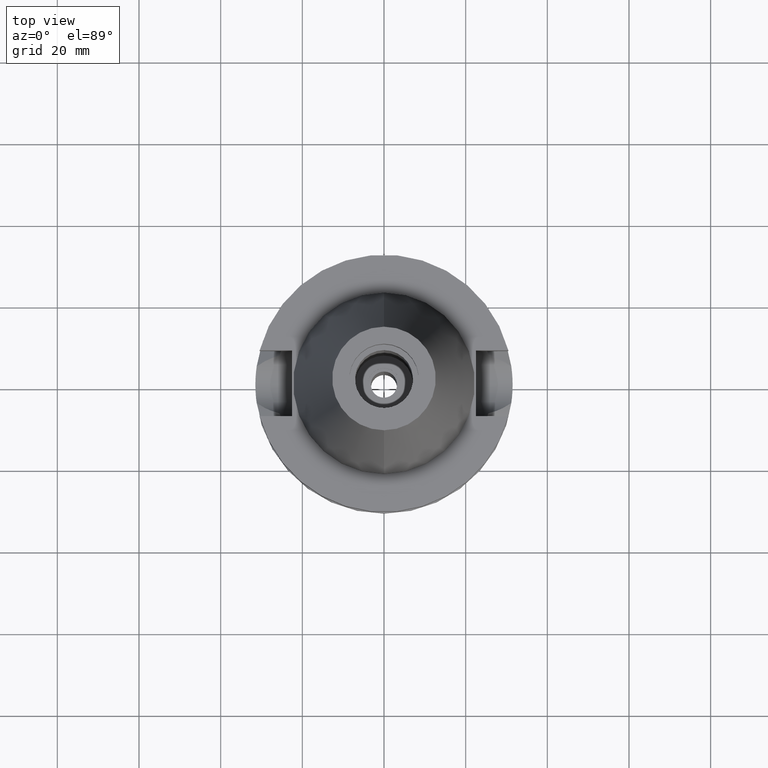
[diagram: clean part render]
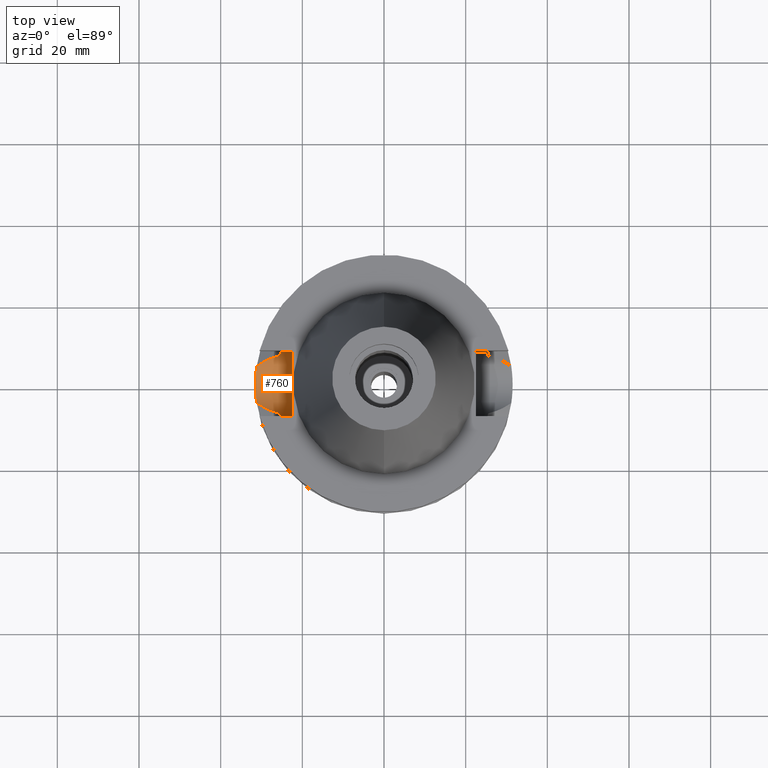
[diagram: same view with one face highlighted and labeled with its STEP entity id]
A machine part, top view. The second image highlights one B-rep face of the part: STEP entity #760.
In plain terms, the highlighted cylindrical surface (edge-blend (fillet) strip) has radius 8.05 mm, axis along (-1, 0, 0).
Its self-contained STEP definition (entity closure, byte-faithful):
#63 = CARTESIAN_POINT ( 'NONE',  ( -25.24772266958000344, -8.050000000000000711, -14.94999999999999929 ) ) ;
#104 = ORIENTED_EDGE ( 'NONE', *, *, #2413, .F. ) ;
#153 = CARTESIAN_POINT ( 'NONE',  ( -30.85552377717051442, -4.730946574944272953, -21.46981517898995051 ) ) ;
#176 = CARTESIAN_POINT ( 'NONE',  ( -29.92495116892285267, 5.317314239572929147, -20.99555830456288419 ) ) ;
#200 = CARTESIAN_POINT ( 'NONE',  ( -31.41196838671982761, 2.353633167399140191, -22.64828270924342135 ) ) ;
#207 = CARTESIAN_POINT ( 'NONE',  ( -26.79372251046983777, 6.719732988620376268, -19.39535861113916226 ) ) ;
#214 = CARTESIAN_POINT ( 'NONE',  ( -31.43643257257468093, -2.003966855041720230, -22.74771882455625516 ) ) ;
#244 = CARTESIAN_POINT ( 'NONE',  ( -25.31206084004277201, 7.845614529398853954, -16.75329855851934369 ) ) ;
#257 = CARTESIAN_POINT ( 'NONE',  ( -28.96126160750731060, -5.827391182359932920, -20.50387863129706290 ) ) ;
#272 = CARTESIAN_POINT ( 'NONE',  ( -29.23802939806597934, -5.690174520726454688, -20.64519331293571369 ) ) ;
#313 = CARTESIAN_POINT ( 'NONE',  ( -25.32419709970372068, -7.806318959917333267, -16.91578803894913108 ) ) ;
#371 = B_SPLINE_CURVE_WITH_KNOTS ( 'NONE', 3,
 ( #764, #2160, #2693, #440, #2715, #1620, #2747, #461, #3512, #742, #200, #2142, #3314, #1878, #2419, #3563, #1547, #1898, #214, #3025, #1338, #2969, #966, #2103, #2987, #1563 ),
 .UNSPECIFIED., .F., .F.,
 ( 4, 2, 2, 1, 1, 2, 2, 2, 2, 2, 1, 1, 2, 2, 4 ),
 ( 0.0000000000000000000, 0.1250000000000000555, 0.1875000000000003608, 0.2187500000000005829, 0.2343750000000006661, 0.2421875000000006939, 0.2500000000000007216, 0.4999999999999980016, 0.6249999999999966693, 0.6874999999999961142, 0.7187499999999957812, 0.7343749999999956701, 0.7421874999999955591, 0.7499999999999954481, 1.000000000000000000 ),
 .UNSPECIFIED. ) ;
#429 = EDGE_CURVE ( 'NONE', #2083, #3082, #1722, .T. ) ;
#440 = CARTESIAN_POINT ( 'NONE',  ( -31.33704727451088701, 3.201741485572032975, -22.33858232039710146 ) ) ;
#447 = CARTESIAN_POINT ( 'NONE',  ( -28.61764694087496608, 5.991757067151514349, -20.32839485513061106 ) ) ;
#461 = CARTESIAN_POINT ( 'NONE',  ( -31.40238352135567368, 2.478482150255520988, -22.60918600287887870 ) ) ;
#473 = CARTESIAN_POINT ( 'NONE',  ( -30.50769866365479288, 4.966315119253688515, -21.29262337969223751 ) ) ;
#599 = VERTEX_POINT ( 'NONE', #3201 ) ;
#684 = CARTESIAN_POINT ( 'NONE',  ( -31.17899877608999759, 4.485536235554000051, -21.63449434733000132 ) ) ;
#742 = CARTESIAN_POINT ( 'NONE',  ( -31.41056491124585293, 2.372237050524538926, -22.64256036890107993 ) ) ;
#755 = B_SPLINE_CURVE_WITH_KNOTS ( 'NONE', 3,
 ( #2680, #153, #1568, #3380, #1150, #2805, #272, #2229, #257, #1950, #2526, #3416, #2211 ),
 .UNSPECIFIED., .F., .F.,
 ( 4, 2, 2, 1, 2, 2, 4 ),
 ( 0.0000000000000000000, 0.2500000000000057732, 0.3750000000000087708, 0.4375000000000099365, 0.4687500000000101585, 0.5000000000000104361, 1.000000000000000000 ),
 .UNSPECIFIED. ) ;
#760 = ADVANCED_FACE ( 'NONE', ( #1275 ), #3539, .F. ) ;
#764 = CARTESIAN_POINT ( 'NONE',  ( -31.17899877608999759, 4.485536235554000051, -21.63449434733000132 ) ) ;
#823 = CARTESIAN_POINT ( 'NONE',  ( -25.25396625246038695, 8.030896711159561718, -15.59378553532217460 ) ) ;
#837 = ORIENTED_EDGE ( 'NONE', *, *, #2483, .T. ) ;
#839 = CARTESIAN_POINT ( 'NONE',  ( -25.24772266958001055, 8.050000000000016698, -15.27000344023674927 ) ) ;
#858 = CARTESIAN_POINT ( 'NONE',  ( -25.39164951575627072, -7.584807667268660403, -17.65197957178662591 ) ) ;
#885 = ORIENTED_EDGE ( 'NONE', *, *, #2778, .T. ) ;
#933 = LINE ( 'NONE', #1788, #3421 ) ;
#957 = DIRECTION ( 'NONE',  ( -1.000000000000000000, 0.0000000000000000000, 0.0000000000000000000 ) ) ;
#966 = CARTESIAN_POINT ( 'NONE',  ( -31.41425586186309715, -2.322858716165696613, -22.65761362937588785 ) ) ;
#1000 = DIRECTION ( 'NONE',  ( 0.0000000000000000000, 0.0000000000000000000, -1.000000000000000000 ) ) ;
#1007 = CARTESIAN_POINT ( 'NONE',  ( -31.17899877608999759, -4.485536235554000051, -21.63449434733000132 ) ) ;
#1064 = CARTESIAN_POINT ( 'NONE',  ( -30.86098377330747766, 4.726804247068216114, -21.47259483004561886 ) ) ;
#1077 = CARTESIAN_POINT ( 'NONE',  ( -25.43789037939438202, 7.435491690444336221, -18.11672414067862036 ) ) ;
#1135 = CARTESIAN_POINT ( 'NONE',  ( -25.33293017119734003, -7.777974374869151220, -17.02562462714743319 ) ) ;
#1150 = CARTESIAN_POINT ( 'NONE',  ( -29.71459382902008883, -5.437100077644570817, -20.88840961852611144 ) ) ;
#1195 = B_SPLINE_CURVE_WITH_KNOTS ( 'NONE', 3,
 ( #1571, #1064, #473, #176, #2994, #2428, #3284, #447, #3103, #2741, #3046, #3319, #3033, #1596, #3303, #207, #3556, #1863 ),
 .UNSPECIFIED., .F., .F.,
 ( 4, 2, 2, 2, 2, 1, 1, 2, 2, 4 ),
 ( 0.0000000000000000000, 0.2500000000000104361, 0.3750000000000153211, 0.5000000000000202061, 0.6250000000000250910, 0.6875000000000272005, 0.7187500000000279776, 0.7343750000000275335, 0.7500000000000270894, 1.000000000000000000 ),
 .UNSPECIFIED. ) ;
#1235 = ORIENTED_EDGE ( 'NONE', *, *, #2365, .T. ) ;
#1275 = FACE_OUTER_BOUND ( 'NONE', #3111, .T. ) ;
#1338 = CARTESIAN_POINT ( 'NONE',  ( -31.41974700004597665, -2.247358039327526313, -22.67997564925554244 ) ) ;
#1363 = CARTESIAN_POINT ( 'NONE',  ( -25.32122245610152333, 7.815962707354717764, -16.87706809355960402 ) ) ;
#1401 = CARTESIAN_POINT ( 'NONE',  ( -25.24772266958001055, -8.049999999999984723, -15.58999736305831973 ) ) ;
#1435 = ORIENTED_EDGE ( 'NONE', *, *, #429, .T. ) ;
#1476 = CARTESIAN_POINT ( 'NONE',  ( -25.53175183775000079, -7.097862220092999941, -18.74774300138999905 ) ) ;
#1507 = DIRECTION ( 'NONE',  ( 1.000000000000000000, 1.551559937893000172E-14, -3.620306521749999889E-14 ) ) ;
#1547 = CARTESIAN_POINT ( 'NONE',  ( -31.46161069947297406, -1.564500927471072611, -22.84904545394530473 ) ) ;
#1563 = CARTESIAN_POINT ( 'NONE',  ( -31.17899877608999759, -4.485536235554000051, -21.63449434733000132 ) ) ;
#1568 = CARTESIAN_POINT ( 'NONE',  ( -30.49957164465255843, -4.971738653406688080, -21.28861833821772720 ) ) ;
#1571 = CARTESIAN_POINT ( 'NONE',  ( -31.17899877608999759, 4.485536235554000051, -21.63449434733000132 ) ) ;
#1596 = CARTESIAN_POINT ( 'NONE',  ( -27.39618361203392283, 6.496535640457026695, -19.70378481150588357 ) ) ;
#1620 = CARTESIAN_POINT ( 'NONE',  ( -31.37890571234700587, 2.759253316053588811, -22.51292583804538339 ) ) ;
#1643 = CARTESIAN_POINT ( 'NONE',  ( -25.36818832152595249, 7.663695285298014248, -17.48840541843546958 ) ) ;
#1680 = CARTESIAN_POINT ( 'NONE',  ( -25.27269391206938565, -7.973288729653494222, -16.24537813287016164 ) ) ;
#1722 = B_SPLINE_CURVE_WITH_KNOTS ( 'NONE', 3,
 ( #1476, #2319, #2045, #858, #2549, #3188, #2909, #1135, #1986, #3132, #313, #1680, #1401, #1968 ),
 .UNSPECIFIED., .F., .F.,
 ( 4, 2, 2, 1, 1, 2, 2, 4 ),
 ( 0.0000000000000000000, 0.2499999999999834022, 0.3749999999999751865, 0.4374999999999711342, 0.4687499999999688582, 0.4843749999999691913, 0.4999999999999694689, 1.000000000000000000 ),
 .UNSPECIFIED. ) ;
#1788 = CARTESIAN_POINT ( 'NONE',  ( -25.24772266958000344, 8.050000000000000711, -14.94999999999999929 ) ) ;
#1843 = CARTESIAN_POINT ( 'NONE',  ( -22.50000000000000000, -8.050000000000000711, -14.94999999999999929 ) ) ;
#1863 = CARTESIAN_POINT ( 'NONE',  ( -25.53175183775000079, 7.097862220092999941, -18.74774300138999905 ) ) ;
#1878 = CARTESIAN_POINT ( 'NONE',  ( -31.49987638199703355, -0.3937373737425396425, -22.99951167286949882 ) ) ;
#1898 = CARTESIAN_POINT ( 'NONE',  ( -31.44527646887209471, -1.857544946900752336, -22.78339309170242899 ) ) ;
#1930 = VECTOR ( 'NONE', #2197, 1000.000000000000000 ) ;
#1950 = CARTESIAN_POINT ( 'NONE',  ( -28.90663902711317590, -5.853856526606637800, -20.47598582950593737 ) ) ;
#1962 = CARTESIAN_POINT ( 'NONE',  ( -25.30215890781839505, 7.877570599496754866, -16.61088255778470923 ) ) ;
#1968 = CARTESIAN_POINT ( 'NONE',  ( -25.24772266958000344, -8.050000000000000711, -14.94999999999999929 ) ) ;
#1986 = CARTESIAN_POINT ( 'NONE',  ( -25.32844777903717670, -7.792527725358711521, -16.96974754109089645 ) ) ;
#2045 = CARTESIAN_POINT ( 'NONE',  ( -25.44392837593174406, -7.408239564974261171, -18.11709494192860959 ) ) ;
#2083 = VERTEX_POINT ( 'NONE', #3400 ) ;
#2103 = CARTESIAN_POINT ( 'NONE',  ( -31.36260275698547062, -3.014870738529931149, -22.44700345725764024 ) ) ;
#2142 = CARTESIAN_POINT ( 'NONE',  ( -31.47150128874051589, 1.550917995534081051, -22.89093254494732577 ) ) ;
#2160 = CARTESIAN_POINT ( 'NONE',  ( -31.23220374065949301, 4.115708095071471284, -21.88266233714172415 ) ) ;
#2197 = DIRECTION ( 'NONE',  ( -1.000000000000000000, 1.616208268639000174E-14, -1.034373291929000154E-14 ) ) ;
#2211 = CARTESIAN_POINT ( 'NONE',  ( -25.53175183775000079, -7.097862220092999941, -18.74774300138999905 ) ) ;
#2229 = CARTESIAN_POINT ( 'NONE',  ( -29.07257766998576187, -5.772685795407473286, -20.56071782848909635 ) ) ;
#2319 = CARTESIAN_POINT ( 'NONE',  ( -25.48482038768794311, -7.266679548363494945, -18.43222872461958772 ) ) ;
#2365 = EDGE_CURVE ( 'NONE', #2779, #3208, #2642, .T. ) ;
#2413 = EDGE_CURVE ( 'NONE', #2779, #3082, #3584, .T. ) ;
#2419 = CARTESIAN_POINT ( 'NONE',  ( -31.49253540246490246, -0.7829780335718081741, -22.97155374604001210 ) ) ;
#2428 = CARTESIAN_POINT ( 'NONE',  ( -29.29827358507287727, 5.660383147545537064, -20.67590331310077190 ) ) ;
#2457 = EDGE_CURVE ( 'NONE', #2867, #2083, #755, .T. ) ;
#2477 = CARTESIAN_POINT ( 'NONE',  ( -22.50000000000000000, 1.807578675540999863E-14, -14.94999999999999929 ) ) ;
#2483 = EDGE_CURVE ( 'NONE', #599, #3273, #2709, .T. ) ;
#2506 = CARTESIAN_POINT ( 'NONE',  ( -25.27269700110154815, 7.971767412699252375, -16.08147680843547533 ) ) ;
#2526 = CARTESIAN_POINT ( 'NONE',  ( -27.91696961584386472, -6.326137705407267831, -19.97058970273101863 ) ) ;
#2549 = CARTESIAN_POINT ( 'NONE',  ( -25.37573308860759624, -7.637710303683676649, -17.49818662967809502 ) ) ;
#2642 = CIRCLE ( 'NONE', #3248, 8.050000000000000711 ) ;
#2680 = CARTESIAN_POINT ( 'NONE',  ( -31.17899877608999759, -4.485536235554000051, -21.63449434733000132 ) ) ;
#2693 = CARTESIAN_POINT ( 'NONE',  ( -31.27836648583588897, 3.744813399159652167, -22.08709055486511019 ) ) ;
#2709 = B_SPLINE_CURVE_WITH_KNOTS ( 'NONE', 3,
 ( #3623, #839, #823, #2506, #3369, #2772, #1962, #244, #3396, #2789, #1363, #1643, #1077, #3348 ),
 .UNSPECIFIED., .F., .F.,
 ( 4, 2, 2, 1, 1, 2, 2, 4 ),
 ( 0.0000000000000000000, 0.2499999999999837907, 0.3749999999999755751, 0.4374999999999715783, 0.4687499999999684142, 0.4843749999999679146, 0.4999999999999674705, 1.000000000000000000 ),
 .UNSPECIFIED. ) ;
#2715 = CARTESIAN_POINT ( 'NONE',  ( -31.35484698255429237, 3.022878705303804203, -22.41324384625942656 ) ) ;
#2738 = DIRECTION ( 'NONE',  ( 0.0000000000000000000, -1.000000000000000000, 1.917893035551997704E-14 ) ) ;
#2741 = CARTESIAN_POINT ( 'NONE',  ( -27.99517775890607041, 6.261278566444865135, -20.01023983467155531 ) ) ;
#2747 = CARTESIAN_POINT ( 'NONE',  ( -31.39027486917520804, 2.628603510741960747, -22.55969012852283839 ) ) ;
#2772 = CARTESIAN_POINT ( 'NONE',  ( -25.29454954118293841, 7.902007388337038307, -16.48871296866794012 ) ) ;
#2778 = EDGE_CURVE ( 'NONE', #3316, #2867, #371, .T. ) ;
#2779 = VERTEX_POINT ( 'NONE', #1843 ) ;
#2789 = CARTESIAN_POINT ( 'NONE',  ( -25.31954826170011685, 7.821386849067248015, -16.85495274079948658 ) ) ;
#2805 = CARTESIAN_POINT ( 'NONE',  ( -29.39891402923391439, -5.606354072680576728, -20.72731430031889488 ) ) ;
#2867 = VERTEX_POINT ( 'NONE', #1007 ) ;
#2877 = CARTESIAN_POINT ( 'NONE',  ( -22.50000000000000000, 8.050000000000000711, -14.94999999999999929 ) ) ;
#2909 = CARTESIAN_POINT ( 'NONE',  ( -25.34388450891127320, -7.742333382909245110, -17.15666984726874844 ) ) ;
#2969 = CARTESIAN_POINT ( 'NONE',  ( -31.41623505044934106, -2.295962347427818351, -22.66567875136124499 ) ) ;
#2979 = CARTESIAN_POINT ( 'NONE',  ( -22.50000000000000000, 1.807578675540999863E-14, -14.94999999999999929 ) ) ;
#2987 = CARTESIAN_POINT ( 'NONE',  ( -31.28470547692855419, -3.750768100158396123, -22.12755020538252282 ) ) ;
#2991 = CARTESIAN_POINT ( 'NONE',  ( -22.50000000000000000, -8.050000000000000711, -14.94999999999999929 ) ) ;
#2994 = CARTESIAN_POINT ( 'NONE',  ( -29.72190261789924648, 5.432929974578137866, -20.89201862958654488 ) ) ;
#3025 = CARTESIAN_POINT ( 'NONE',  ( -31.42493032681630538, -2.174413258177177788, -22.70105836180215064 ) ) ;
#3033 = CARTESIAN_POINT ( 'NONE',  ( -27.46452624741609938, 6.470795059726303755, -19.73876579096939210 ) ) ;
#3046 = CARTESIAN_POINT ( 'NONE',  ( -27.80076349923527346, 6.340819020619354873, -19.91081807782335744 ) ) ;
#3082 = VERTEX_POINT ( 'NONE', #63 ) ;
#3103 = CARTESIAN_POINT ( 'NONE',  ( -28.37548087885049242, 6.100734328381179239, -20.20466640313407325 ) ) ;
#3111 = EDGE_LOOP ( 'NONE', ( #1435, #104, #1235, #3494, #837, #3424, #885, #3218 ) ) ;
#3132 = CARTESIAN_POINT ( 'NONE',  ( -25.32550670070882859, -7.802071535315739936, -16.93256103009284530 ) ) ;
#3170 = AXIS2_PLACEMENT_3D ( 'NONE', #2979, #957, #1000 ) ;
#3188 = CARTESIAN_POINT ( 'NONE',  ( -25.35412323724926509, -7.708830947900177755, -17.27007949483692428 ) ) ;
#3201 = CARTESIAN_POINT ( 'NONE',  ( -25.24772266958000344, 8.050000000000000711, -14.94999999999999929 ) ) ;
#3208 = VERTEX_POINT ( 'NONE', #2877 ) ;
#3218 = ORIENTED_EDGE ( 'NONE', *, *, #2457, .T. ) ;
#3248 = AXIS2_PLACEMENT_3D ( 'NONE', #2477, #3332, #2738 ) ;
#3273 = VERTEX_POINT ( 'NONE', #3448 ) ;
#3284 = CARTESIAN_POINT ( 'NONE',  ( -29.07915292958886866, 5.771523831644029379, -20.56407323850010016 ) ) ;
#3303 = CARTESIAN_POINT ( 'NONE',  ( -27.36066093300428648, 6.509798741471972683, -19.68560084557940115 ) ) ;
#3314 = CARTESIAN_POINT ( 'NONE',  ( -31.50024232868987184, 0.7571333964171345077, -23.00095759426207565 ) ) ;
#3316 = VERTEX_POINT ( 'NONE', #684 ) ;
#3319 = CARTESIAN_POINT ( 'NONE',  ( -27.56651064790741401, 6.432057501175093783, -19.79096120108752288 ) ) ;
#3332 = DIRECTION ( 'NONE',  ( 1.000000000000000000, 0.0000000000000000000, 0.0000000000000000000 ) ) ;
#3348 = CARTESIAN_POINT ( 'NONE',  ( -25.53175183775000079, 7.097862220092999941, -18.74774300138999905 ) ) ;
#3369 = CARTESIAN_POINT ( 'NONE',  ( -25.28050147970204975, 7.946982733722277814, -16.24437200643377466 ) ) ;
#3380 = CARTESIAN_POINT ( 'NONE',  ( -29.91692774547791700, -5.322114076623355672, -20.99160936127530519 ) ) ;
#3384 = EDGE_CURVE ( 'NONE', #3316, #3273, #1195, .T. ) ;
#3396 = CARTESIAN_POINT ( 'NONE',  ( -25.31652402624242981, 7.831177078178395590, -16.81429685341546332 ) ) ;
#3400 = CARTESIAN_POINT ( 'NONE',  ( -25.53175183775000079, -7.097862220092999941, -18.74774300138999905 ) ) ;
#3416 = CARTESIAN_POINT ( 'NONE',  ( -26.81141250196339243, -6.746105431373973893, -19.40516537577946465 ) ) ;
#3421 = VECTOR ( 'NONE', #1507, 1000.000000000000000 ) ;
#3424 = ORIENTED_EDGE ( 'NONE', *, *, #3384, .F. ) ;
#3448 = CARTESIAN_POINT ( 'NONE',  ( -25.53175183775000079, 7.097862220092999941, -18.74774300138999905 ) ) ;
#3494 = ORIENTED_EDGE ( 'NONE', *, *, #3550, .F. ) ;
#3512 = CARTESIAN_POINT ( 'NONE',  ( -31.40732536569318256, 2.414664100621000564, -22.62934834046749444 ) ) ;
#3539 = CYLINDRICAL_SURFACE ( 'NONE', #3170, 8.050000000000000711 ) ;
#3550 = EDGE_CURVE ( 'NONE', #599, #3208, #933, .T. ) ;
#3556 = CARTESIAN_POINT ( 'NONE',  ( -26.19489355736144276, 6.915575924764970850, -19.08843035394588128 ) ) ;
#3563 = CARTESIAN_POINT ( 'NONE',  ( -31.47069543721492479, -1.368873748142594104, -22.88521609265066559 ) ) ;
#3584 = LINE ( 'NONE', #2991, #1930 ) ;
#3623 = CARTESIAN_POINT ( 'NONE',  ( -25.24772266958000344, 8.050000000000000711, -14.94999999999999929 ) ) ;